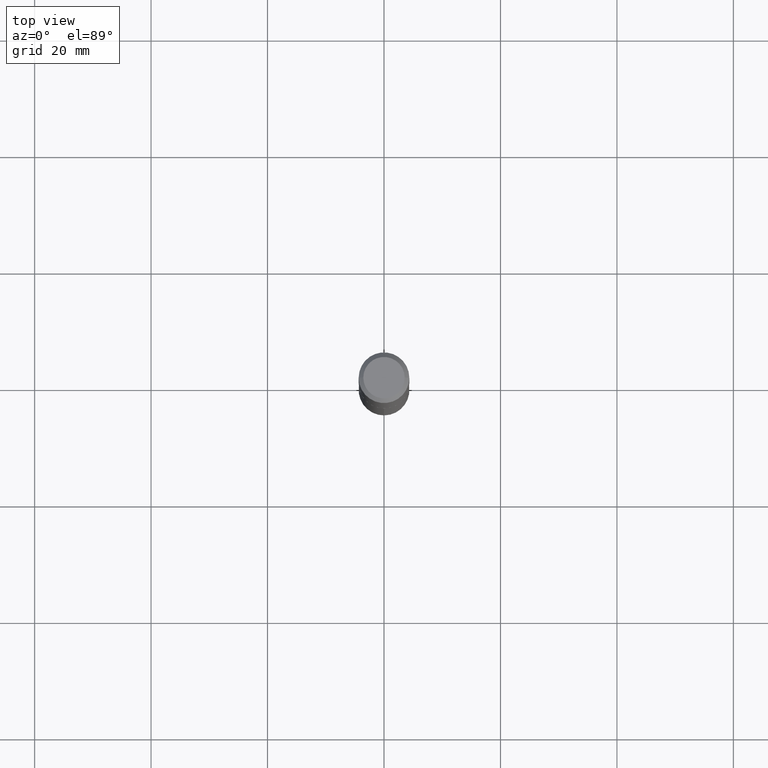
[diagram: clean part render]
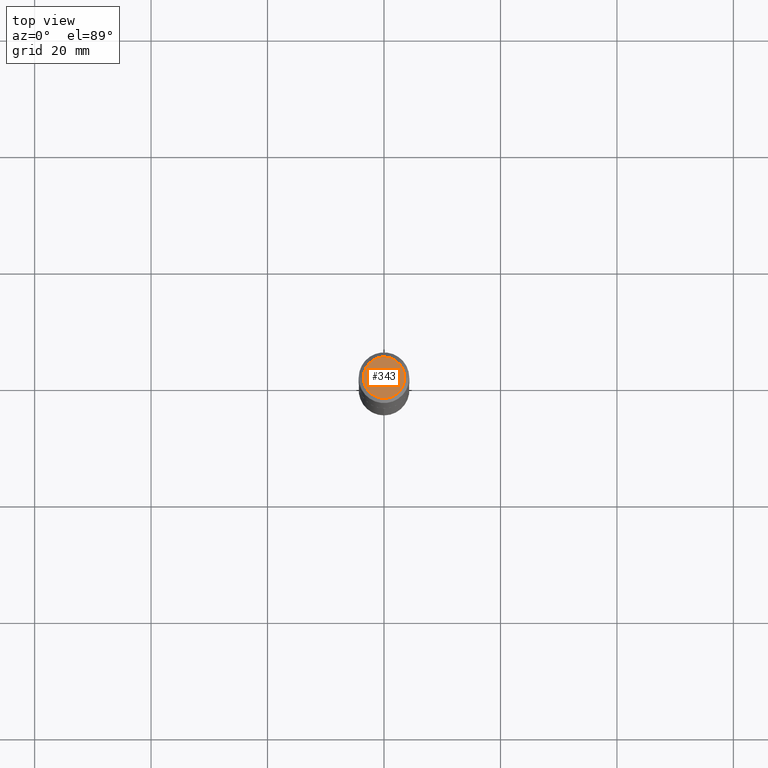
[diagram: same view with one face highlighted and labeled with its STEP entity id]
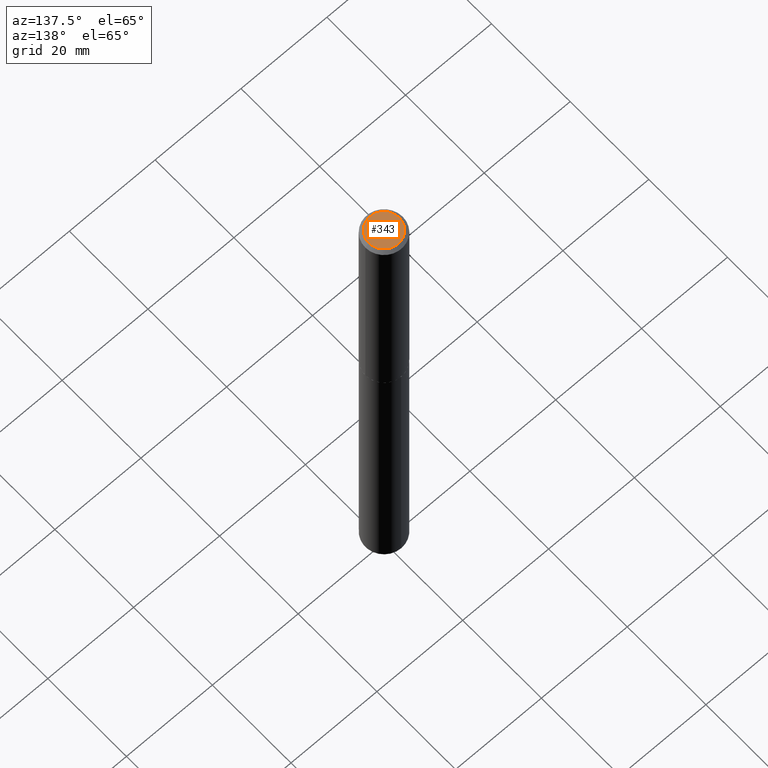
[diagram: same view with one face highlighted and labeled with its STEP entity id]
A machine part, top view. The second image highlights one B-rep face of the part: STEP entity #343.
A second angle (auxiliary view) of the same face is appended — the face is thin or edge-on in the first view.
In plain terms, the highlighted planar face has unit normal (0, -0, -1).
Its self-contained STEP definition (entity closure, byte-faithful):
#28 = CIRCLE ( 'NONE', #188, 0.1400000000000000133 ) ;
#30 = DIRECTION ( 'NONE',  ( -2.445468806185136597E-29, 3.491481338843145583E-15, 1.000000000000000000 ) ) ;
#54 = DIRECTION ( 'NONE',  ( 1.000000000000000000, -6.982962677686265922E-15, 4.876177996939016778E-29 ) ) ;
#75 = CARTESIAN_POINT ( 'NONE',  ( -2.919964657261599251E-48, 4.168935659749557485E-34, 1.194030629168671885E-19 ) ) ;
#92 = EDGE_CURVE ( 'NONE', #225, #261, #211, .T. ) ;
#96 = CARTESIAN_POINT ( 'NONE',  ( -5.839929314523198503E-48, 8.337871319499114970E-34, 2.388061258337343770E-19 ) ) ;
#97 = CARTESIAN_POINT ( 'NONE',  ( -0.1400000000000000133, 1.032169170795500864E-15, 2.388061258267069475E-19 ) ) ;
#127 = FACE_OUTER_BOUND ( 'NONE', #200, .T. ) ;
#167 = ORIENTED_EDGE ( 'NONE', *, *, #240, .T. ) ;
#180 = ORIENTED_EDGE ( 'NONE', *, *, #92, .T. ) ;
#188 = AXIS2_PLACEMENT_3D ( 'NONE', #222, #315, #191 ) ;
#191 = DIRECTION ( 'NONE',  ( 1.000000000000000000, -6.982962677686265922E-15, 4.876177996939016778E-29 ) ) ;
#200 = EDGE_LOOP ( 'NONE', ( #180, #167 ) ) ;
#211 = CIRCLE ( 'NONE', #286, 0.1400000000000000133 ) ;
#222 = CARTESIAN_POINT ( 'NONE',  ( -5.839929314523198503E-48, 8.337871319499114970E-34, 2.388061258337343770E-19 ) ) ;
#225 = VERTEX_POINT ( 'NONE', #97 ) ;
#240 = EDGE_CURVE ( 'NONE', #261, #225, #28, .T. ) ;
#248 = PLANE ( 'NONE',  #311 ) ;
#261 = VERTEX_POINT ( 'NONE', #313 ) ;
#281 = DIRECTION ( 'NONE',  ( -1.000000000000000000, 6.982962677686265922E-15, -4.876176775795935793E-29 ) ) ;
#286 = AXIS2_PLACEMENT_3D ( 'NONE', #96, #30, #54 ) ;
#311 = AXIS2_PLACEMENT_3D ( 'NONE', #75, #321, #281 ) ;
#313 = CARTESIAN_POINT ( 'NONE',  ( 0.1400000000000000133, -1.122219396822619173E-15, 2.388061258410762627E-19 ) ) ;
#315 = DIRECTION ( 'NONE',  ( -2.445468806185136597E-29, 3.491481338843145583E-15, 1.000000000000000000 ) ) ;
#321 = DIRECTION ( 'NONE',  ( 2.438088387897960049E-29, -3.491481338843145188E-15, -1.000000000000000000 ) ) ;
#343 = ADVANCED_FACE ( 'NONE', ( #127 ), #248, .F. ) ;